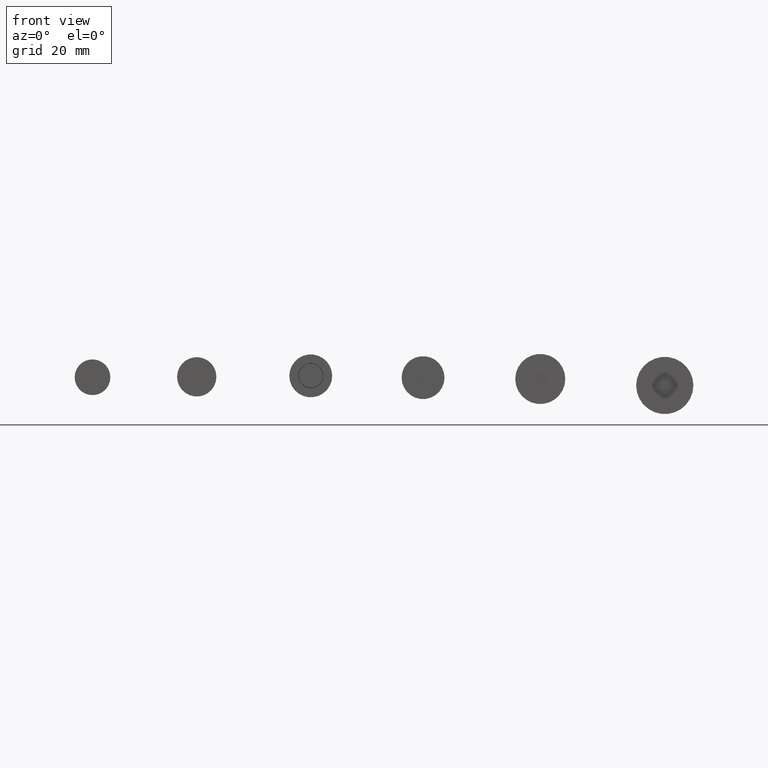
[diagram: clean part render]
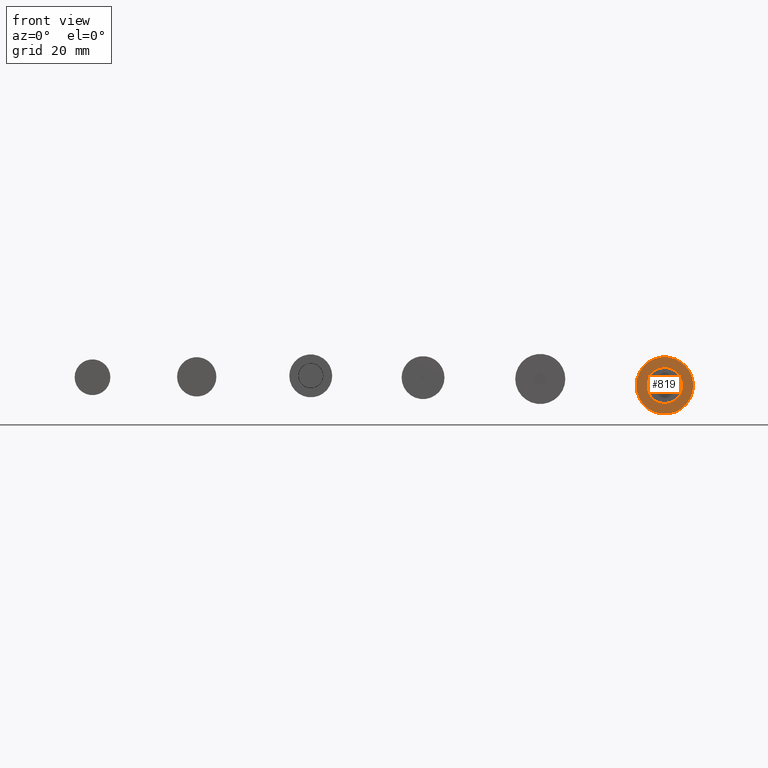
[diagram: same view with one face highlighted and labeled with its STEP entity id]
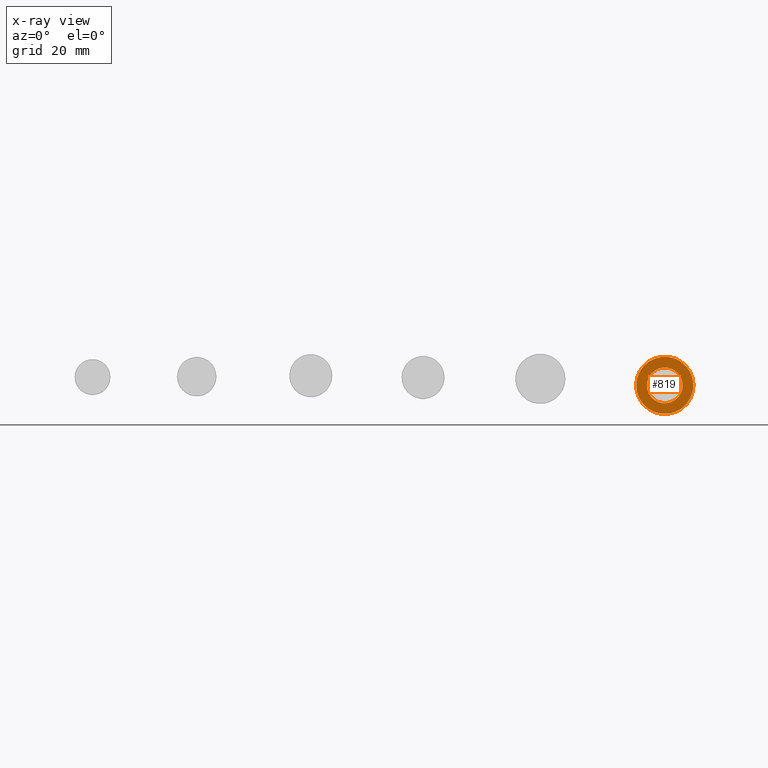
[diagram: x-ray of the same camera — body ghosted, the highlighted face saturated]
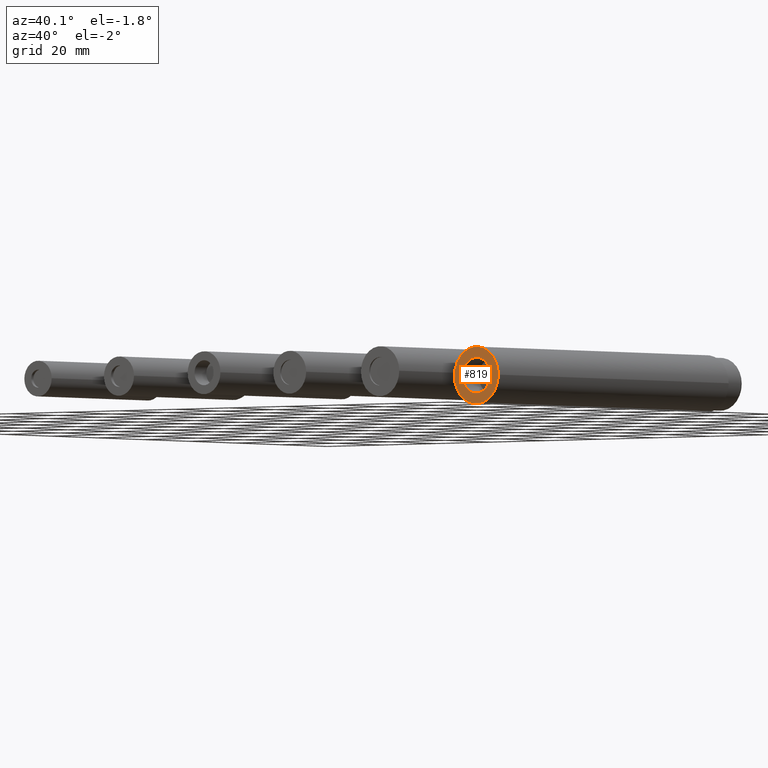
[diagram: same view with one face highlighted and labeled with its STEP entity id]
A machine part, front view. The second image highlights one B-rep face of the part: STEP entity #819.
The next image is the same camera in x-ray: the body ghosted, the highlighted face saturated — about 0% of this face is hidden behind the body in this view.
A second angle (auxiliary view) of the same face is appended — the face is thin or edge-on in the first view.
In plain terms, the highlighted planar face has unit normal (-0, -1, -0).
Its self-contained STEP definition (entity closure, byte-faithful):
#193=PLANE('',#982);
#245=FACE_BOUND('',#424,.T.);
#309=FACE_OUTER_BOUND('',#423,.T.);
#423=EDGE_LOOP('',(#723));
#424=EDGE_LOOP('',(#724));
#488=CIRCLE('',#977,5.);
#490=CIRCLE('',#980,8.);
#548=VERTEX_POINT('',#1535);
#550=VERTEX_POINT('',#1540);
#608=EDGE_CURVE('',#548,#548,#488,.T.);
#610=EDGE_CURVE('',#550,#550,#490,.T.);
#723=ORIENTED_EDGE('',*,*,#610,.T.);
#724=ORIENTED_EDGE('',*,*,#608,.T.);
#819=ADVANCED_FACE('',(#309,#245),#193,.T.);
#977=AXIS2_PLACEMENT_3D('',#1536,#1284,#1285);
#980=AXIS2_PLACEMENT_3D('',#1541,#1290,#1291);
#982=AXIS2_PLACEMENT_3D('',#1543,#1294,#1295);
#1284=DIRECTION('center_axis',(0.,0.,1.));
#1285=DIRECTION('ref_axis',(-1.,0.,0.));
#1290=DIRECTION('center_axis',(0.,0.,-1.));
#1291=DIRECTION('ref_axis',(-1.,0.,0.));
#1294=DIRECTION('center_axis',(0.,0.,-1.));
#1295=DIRECTION('ref_axis',(-1.,0.,0.));
#1535=CARTESIAN_POINT('',(5.,6.12323399573677E-16,0.));
#1536=CARTESIAN_POINT('Origin',(0.,0.,0.));
#1540=CARTESIAN_POINT('',(8.,9.79717439317883E-16,0.));
#1541=CARTESIAN_POINT('Origin',(0.,0.,0.));
#1543=CARTESIAN_POINT('Origin',(0.,0.,0.));